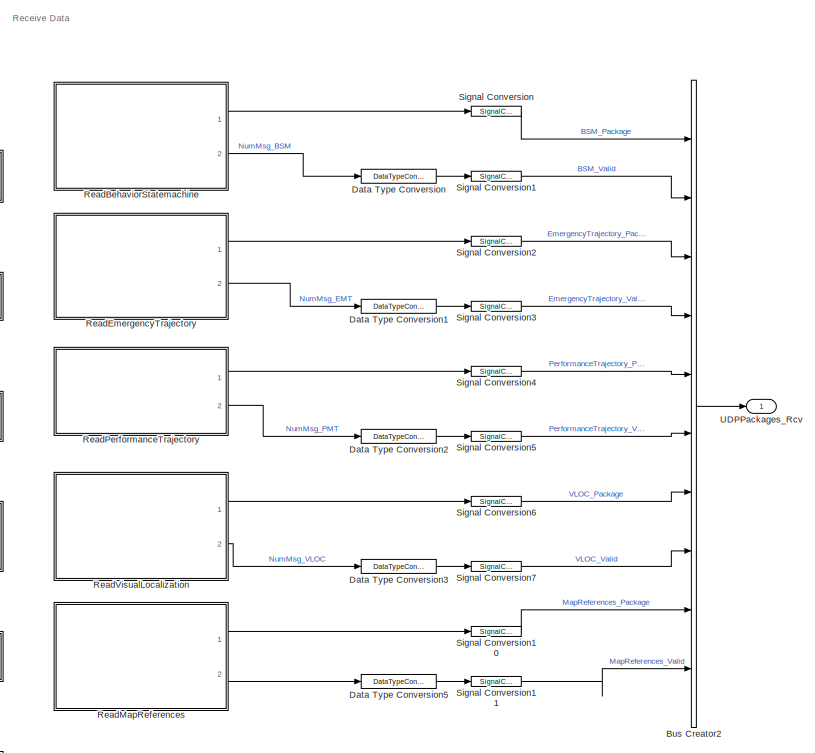
[diagram: root canvas - part 1/2, top right region]
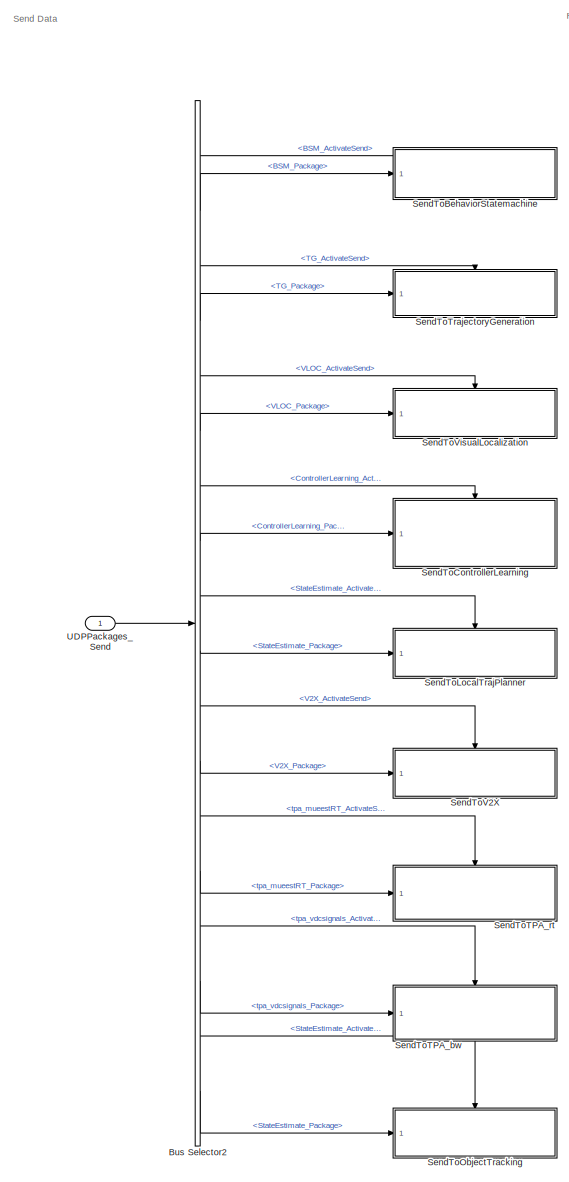
[diagram: root canvas - part 2/2, left side, full height]
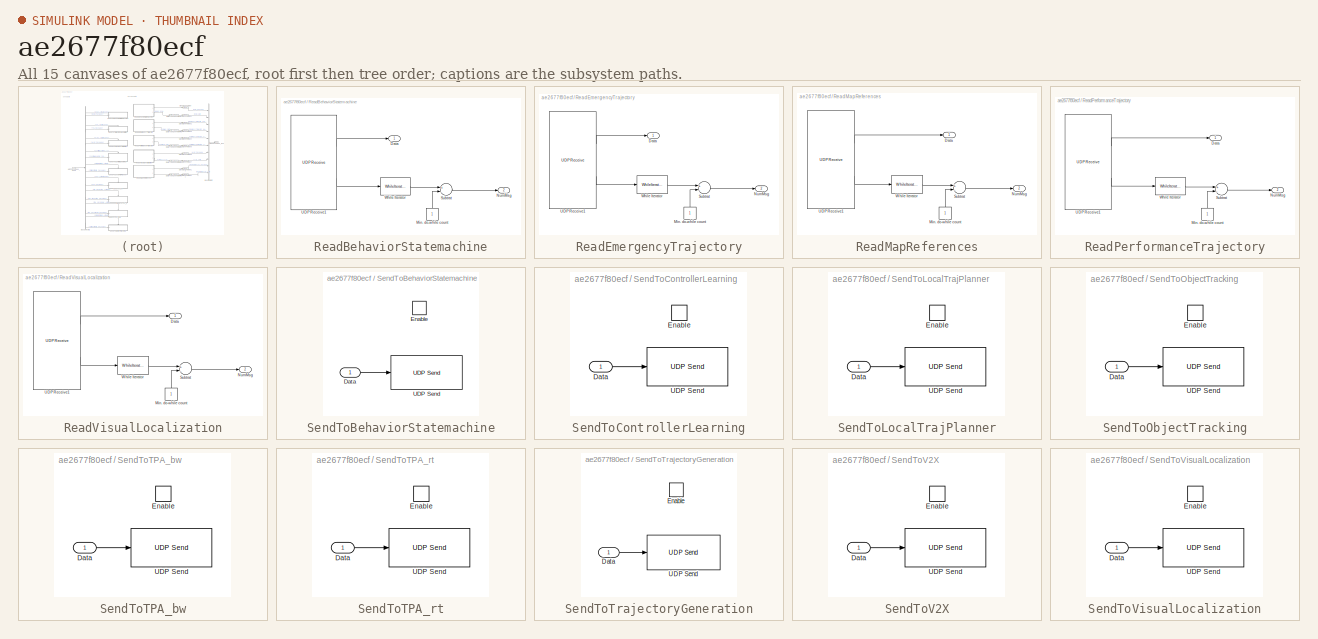
[diagram: thumbnail index - all 15 canvases of the model, root first then tree order]
MODEL slx_ae2677f80ecf
KIND model
BLOCK [BusCreator] Bus Creator2
  DisplayOption = bar
  InheritFromInputs = on
  Inputs = 10
  Ports = [10, 1]
BLOCK [BusSelector] Bus Selector2
  OutputAsBus = off
  OutputSignals = BSM_ActivateSend,BSM_Package,TG_ActivateSend,TG_Package,VLOC_ActivateSend,VLOC_Package,ControllerLearning_ActivateSend,ControllerLearning_Package,StateEstimate_ActivateSend,StateEstimate_Package,V2X_ActivateSend,V2X_Package,tpa_mueestRT_ActivateSend,tpa_mueestRT_Package,tpa_vdcsignals_ActivateSend,tpa_vdcsignals_Package,StateEstimate_ActivateSend,StateEstimate_Package
  Ports = [1, 18]
BLOCK [DataTypeConversion] Data Type Conversion
  OutDataTypeStr = boolean
  RndMeth = Floor
  SaturateOnIntegerOverflow = off
BLOCK [DataTypeConversion] Data Type Conversion1
  OutDataTypeStr = boolean
  RndMeth = Floor
  SaturateOnIntegerOverflow = off
BLOCK [DataTypeConversion] Data Type Conversion2
  OutDataTypeStr = boolean
  RndMeth = Floor
  SaturateOnIntegerOverflow = off
BLOCK [DataTypeConversion] Data Type Conversion3
  OutDataTypeStr = boolean
  RndMeth = Floor
  SaturateOnIntegerOverflow = off
BLOCK [DataTypeConversion] Data Type Conversion5
  OutDataTypeStr = boolean
  RndMeth = Floor
  SaturateOnIntegerOverflow = off
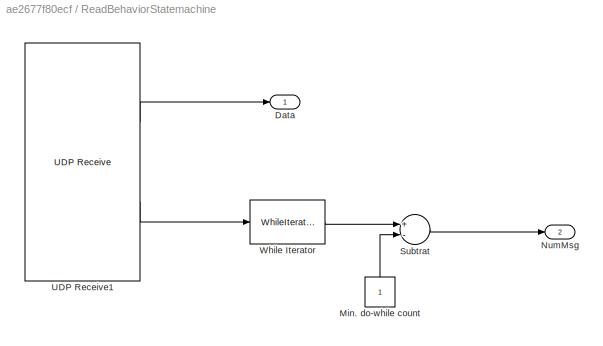
BLOCK [SubSystem] ReadBehaviorStatemachine
  Ports = [0, 2]
  Priority = 1000
  RequestExecContextInheritance = off
BLOCK [Outport] ReadBehaviorStatemachine/Data
  IconDisplay = Port number
BLOCK [Constant] ReadBehaviorStatemachine/Min. do-while count
  OutDataTypeStr = int8
BLOCK [Outport] ReadBehaviorStatemachine/NumMsg
  IconDisplay = Port number
  Port = 2
BLOCK [Sum] ReadBehaviorStatemachine/Subtrat
  InputSameDT = off
  Inputs = +-
  OutDataTypeStr = Inherit: Inherit via internal rule
  Ports = [2, 1]
  SaturateOnIntegerOverflow = off
BLOCK [Reference] ReadBehaviorStatemachine/UDP Receive1  REF=dspnetwork/UDP Receive
  Ports = [0, 2]
  SourceBlock = dspnetwork/UDP Receive
  SourceProductBaseCode = DS
  SourceProductName = DSP System Toolbox
  SourceType = UDP Receive
BLOCK [WhileIterator] ReadBehaviorStatemachine/While Iterator
  MaxIters = -1
  OutputDataType = int16
  Ports = [1, 1]
  ShowIterationPort = on
  WhileBlockType = do-while
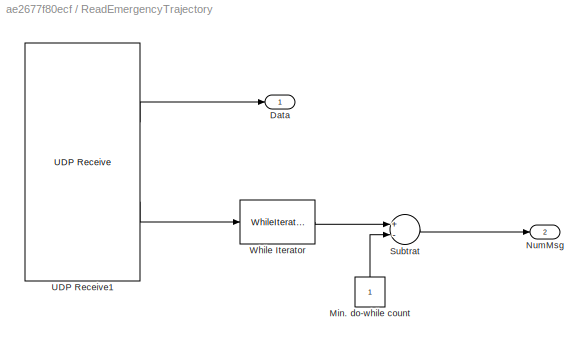
BLOCK [SubSystem] ReadEmergencyTrajectory
  Ports = [0, 2]
  Priority = 1000
  RequestExecContextInheritance = off
BLOCK [Outport] ReadEmergencyTrajectory/Data
  IconDisplay = Port number
BLOCK [Constant] ReadEmergencyTrajectory/Min. do-while count
  OutDataTypeStr = int8
BLOCK [Outport] ReadEmergencyTrajectory/NumMsg
  IconDisplay = Port number
  Port = 2
BLOCK [Sum] ReadEmergencyTrajectory/Subtrat
  InputSameDT = off
  Inputs = +-
  OutDataTypeStr = Inherit: Inherit via internal rule
  Ports = [2, 1]
  SaturateOnIntegerOverflow = off
BLOCK [Reference] ReadEmergencyTrajectory/UDP Receive1  REF=dspnetwork/UDP Receive
  Ports = [0, 2]
  SourceBlock = dspnetwork/UDP Receive
  SourceProductBaseCode = DS
  SourceProductName = DSP System Toolbox
  SourceType = UDP Receive
BLOCK [WhileIterator] ReadEmergencyTrajectory/While Iterator
  MaxIters = -1
  OutputDataType = int16
  Ports = [1, 1]
  ShowIterationPort = on
  WhileBlockType = do-while
BLOCK [SubSystem] ReadMapReferences
  Ports = [0, 2]
  Priority = 1000
  RequestExecContextInheritance = off
BLOCK [Outport] ReadMapReferences/Data
  IconDisplay = Port number
BLOCK [Constant] ReadMapReferences/Min. do-while count
  OutDataTypeStr = int8
BLOCK [Outport] ReadMapReferences/NumMsg
  IconDisplay = Port number
  Port = 2
BLOCK [Sum] ReadMapReferences/Subtrat
  InputSameDT = off
  Inputs = +-
  OutDataTypeStr = Inherit: Inherit via internal rule
  Ports = [2, 1]
  SaturateOnIntegerOverflow = off
BLOCK [Reference] ReadMapReferences/UDP Receive1  REF=dspnetwork/UDP Receive
  Ports = [0, 2]
  SourceBlock = dspnetwork/UDP Receive
  SourceProductBaseCode = DS
  SourceProductName = DSP System Toolbox
  SourceType = UDP Receive
BLOCK [WhileIterator] ReadMapReferences/While Iterator
  MaxIters = -1
  OutputDataType = int16
  Ports = [1, 1]
  ShowIterationPort = on
  WhileBlockType = do-while
BLOCK [SubSystem] ReadPerformanceTrajectory
  Ports = [0, 2]
  Priority = 1000
  RequestExecContextInheritance = off
BLOCK [Outport] ReadPerformanceTrajectory/Data
  IconDisplay = Port number
BLOCK [Constant] ReadPerformanceTrajectory/Min. do-while count
  OutDataTypeStr = int8
BLOCK [Outport] ReadPerformanceTrajectory/NumMsg
  IconDisplay = Port number
  Port = 2
BLOCK [Sum] ReadPerformanceTrajectory/Subtrat
  InputSameDT = off
  Inputs = +-
  OutDataTypeStr = Inherit: Inherit via internal rule
  Ports = [2, 1]
  SaturateOnIntegerOverflow = off
BLOCK [Reference] ReadPerformanceTrajectory/UDP Receive1  REF=dspnetwork/UDP Receive
  Ports = [0, 2]
  SourceBlock = dspnetwork/UDP Receive
  SourceProductBaseCode = DS
  SourceProductName = DSP System Toolbox
  SourceType = UDP Receive
BLOCK [WhileIterator] ReadPerformanceTrajectory/While Iterator
  MaxIters = -1
  OutputDataType = int16
  Ports = [1, 1]
  ShowIterationPort = on
  WhileBlockType = do-while
BLOCK [SubSystem] ReadVisualLocalization
  Ports = [0, 2]
  Priority = 1000
  RequestExecContextInheritance = off
BLOCK [Outport] ReadVisualLocalization/Data
  IconDisplay = Port number
BLOCK [Constant] ReadVisualLocalization/Min. do-while count
  OutDataTypeStr = int8
BLOCK [Outport] ReadVisualLocalization/NumMsg
  IconDisplay = Port number
  Port = 2
BLOCK [Sum] ReadVisualLocalization/Subtrat
  InputSameDT = off
  Inputs = +-
  OutDataTypeStr = Inherit: Inherit via internal rule
  Ports = [2, 1]
  SaturateOnIntegerOverflow = off
BLOCK [Reference] ReadVisualLocalization/UDP Receive1  REF=dspnetwork/UDP Receive
  Ports = [0, 2]
  SourceBlock = dspnetwork/UDP Receive
  SourceProductBaseCode = DS
  SourceProductName = DSP System Toolbox
  SourceType = UDP Receive
BLOCK [WhileIterator] ReadVisualLocalization/While Iterator
  MaxIters = -1
  OutputDataType = int16
  Ports = [1, 1]
  ShowIterationPort = on
  WhileBlockType = do-while
BLOCK [SubSystem] SendToBehaviorStatemachine
  Ports = [1, 0, 1]
  RequestExecContextInheritance = off
BLOCK [Inport] SendToBehaviorStatemachine/Data
  IconDisplay = Port number
BLOCK [EnablePort] SendToBehaviorStatemachine/Enable
  Ports = []
BLOCK [Reference] SendToBehaviorStatemachine/UDP Send  REF=dspnetwork/UDP Send
  Ports = [1]
  SourceBlock = dspnetwork/UDP Send
  SourceProductBaseCode = DS
  SourceProductName = DSP System Toolbox
  SourceType = UDP Send
BLOCK [SubSystem] SendToControllerLearning
  Ports = [1, 0, 1]
  RequestExecContextInheritance = off
BLOCK [Inport] SendToControllerLearning/Data
  IconDisplay = Port number
BLOCK [EnablePort] SendToControllerLearning/Enable
  Ports = []
BLOCK [Reference] SendToControllerLearning/UDP Send  REF=dspnetwork/UDP Send
  Ports = [1]
  SourceBlock = dspnetwork/UDP Send
  SourceProductBaseCode = DS
  SourceProductName = DSP System Toolbox
  SourceType = UDP Send
BLOCK [SubSystem] SendToLocalTrajPlanner
  Ports = [1, 0, 1]
  RequestExecContextInheritance = off
BLOCK [Inport] SendToLocalTrajPlanner/Data
  IconDisplay = Port number
BLOCK [EnablePort] SendToLocalTrajPlanner/Enable
  Ports = []
BLOCK [Reference] SendToLocalTrajPlanner/UDP Send  REF=dspnetwork/UDP Send
  Ports = [1]
  SourceBlock = dspnetwork/UDP Send
  SourceProductBaseCode = DS
  SourceProductName = DSP System Toolbox
  SourceType = UDP Send
BLOCK [SubSystem] SendToObjectTracking
  Ports = [1, 0, 1]
  RequestExecContextInheritance = off
BLOCK [Inport] SendToObjectTracking/Data
  IconDisplay = Port number
BLOCK [EnablePort] SendToObjectTracking/Enable
  Ports = []
BLOCK [Reference] SendToObjectTracking/UDP Send  REF=dspnetwork/UDP Send
  Ports = [1]
  SourceBlock = dspnetwork/UDP Send
  SourceProductBaseCode = DS
  SourceProductName = DSP System Toolbox
  SourceType = UDP Send
BLOCK [SubSystem] SendToTPA_bw
  Ports = [1, 0, 1]
  RequestExecContextInheritance = off
BLOCK [Inport] SendToTPA_bw/Data
  IconDisplay = Port number
BLOCK [EnablePort] SendToTPA_bw/Enable
  Ports = []
BLOCK [Reference] SendToTPA_bw/UDP Send  REF=dspnetwork/UDP Send
  Ports = [1]
  SourceBlock = dspnetwork/UDP Send
  SourceProductBaseCode = DS
  SourceProductName = DSP System Toolbox
  SourceType = UDP Send
BLOCK [SubSystem] SendToTPA_rt
  Ports = [1, 0, 1]
  RequestExecContextInheritance = off
BLOCK [Inport] SendToTPA_rt/Data
  IconDisplay = Port number
BLOCK [EnablePort] SendToTPA_rt/Enable
  Ports = []
BLOCK [Reference] SendToTPA_rt/UDP Send  REF=dspnetwork/UDP Send
  Ports = [1]
  SourceBlock = dspnetwork/UDP Send
  SourceProductBaseCode = DS
  SourceProductName = DSP System Toolbox
  SourceType = UDP Send
BLOCK [SubSystem] SendToTrajectoryGeneration
  Ports = [1, 0, 1]
  RequestExecContextInheritance = off
BLOCK [Inport] SendToTrajectoryGeneration/Data
  IconDisplay = Port number
BLOCK [EnablePort] SendToTrajectoryGeneration/Enable
  Ports = []
BLOCK [Reference] SendToTrajectoryGeneration/UDP Send  REF=dspnetwork/UDP Send
  Ports = [1]
  SourceBlock = dspnetwork/UDP Send
  SourceProductBaseCode = DS
  SourceProductName = DSP System Toolbox
  SourceType = UDP Send
BLOCK [SubSystem] SendToV2X
  Ports = [1, 0, 1]
  RequestExecContextInheritance = off
BLOCK [Inport] SendToV2X/Data
  IconDisplay = Port number
BLOCK [EnablePort] SendToV2X/Enable
  Ports = []
BLOCK [Reference] SendToV2X/UDP Send  REF=dspnetwork/UDP Send
  Ports = [1]
  SourceBlock = dspnetwork/UDP Send
  SourceProductBaseCode = DS
  SourceProductName = DSP System Toolbox
  SourceType = UDP Send
BLOCK [SubSystem] SendToVisualLocalization
  Ports = [1, 0, 1]
  RequestExecContextInheritance = off
BLOCK [Inport] SendToVisualLocalization/Data
  IconDisplay = Port number
BLOCK [EnablePort] SendToVisualLocalization/Enable
  Ports = []
BLOCK [Reference] SendToVisualLocalization/UDP Send  REF=dspnetwork/UDP Send
  Ports = [1]
  SourceBlock = dspnetwork/UDP Send
  SourceProductBaseCode = DS
  SourceProductName = DSP System Toolbox
  SourceType = UDP Send
BLOCK [SignalConversion] Signal Conversion
  OverrideOpt = off
BLOCK [SignalConversion] Signal Conversion1
  OverrideOpt = off
BLOCK [SignalConversion] Signal Conversion10
  OverrideOpt = off
BLOCK [SignalConversion] Signal Conversion11
  OverrideOpt = off
BLOCK [SignalConversion] Signal Conversion2
  OverrideOpt = off
BLOCK [SignalConversion] Signal Conversion3
  OverrideOpt = off
BLOCK [SignalConversion] Signal Conversion4
  OverrideOpt = off
BLOCK [SignalConversion] Signal Conversion5
  OverrideOpt = off
BLOCK [SignalConversion] Signal Conversion6
  OverrideOpt = off
BLOCK [SignalConversion] Signal Conversion7
  OverrideOpt = off
BLOCK [Outport] UDPPackages_Rcv
  IconDisplay = Port number
  OutDataTypeStr = Bus: UDPPackages_Rcv
BLOCK [Inport] UDPPackages_Send
  IconDisplay = Port number
  OutDataTypeStr = Bus: UDPPackages_Send
ANNOTATION (root): Receive Data
ANNOTATION (root): Send Data
LINE Bus Creator2:1 -> UDPPackages_Rcv:1
LINE Bus Selector2:1 -> SendToBehaviorStatemachine:enable
LINE Bus Selector2:10 -> SendToLocalTrajPlanner:1
LINE Bus Selector2:11 -> SendToV2X:enable
LINE Bus Selector2:12 -> SendToV2X:1
LINE Bus Selector2:13 -> SendToTPA_rt:enable
LINE Bus Selector2:14 -> SendToTPA_rt:1
LINE Bus Selector2:15 -> SendToTPA_bw:enable
LINE Bus Selector2:16 -> SendToTPA_bw:1
LINE Bus Selector2:17 -> SendToObjectTracking:enable
LINE Bus Selector2:18 -> SendToObjectTracking:1
LINE Bus Selector2:2 -> SendToBehaviorStatemachine:1
LINE Bus Selector2:3 -> SendToTrajectoryGeneration:enable
LINE Bus Selector2:4 -> SendToTrajectoryGeneration:1
LINE Bus Selector2:5 -> SendToVisualLocalization:enable
LINE Bus Selector2:6 -> SendToVisualLocalization:1
LINE Bus Selector2:7 -> SendToControllerLearning:enable
LINE Bus Selector2:8 -> SendToControllerLearning:1
LINE Bus Selector2:9 -> SendToLocalTrajPlanner:enable
LINE Data Type Conversion1:1 -> Signal Conversion3:1
LINE Data Type Conversion2:1 -> Signal Conversion5:1
LINE Data Type Conversion3:1 -> Signal Conversion7:1
LINE Data Type Conversion5:1 -> Signal Conversion11:1
LINE Data Type Conversion:1 -> Signal Conversion1:1
LINE ReadBehaviorStatemachine/Min. do-while count:1 -> ReadBehaviorStatemachine/Subtrat:2
LINE ReadBehaviorStatemachine/Subtrat:1 -> ReadBehaviorStatemachine/NumMsg:1
LINE ReadBehaviorStatemachine/UDP Receive1:1 -> ReadBehaviorStatemachine/Data:1
LINE ReadBehaviorStatemachine/UDP Receive1:2 -> ReadBehaviorStatemachine/While Iterator:1
LINE ReadBehaviorStatemachine/While Iterator:1 -> ReadBehaviorStatemachine/Subtrat:1
LINE ReadBehaviorStatemachine:1 -> Signal Conversion:1
LINE ReadBehaviorStatemachine:2 -> Data Type Conversion:1
LINE ReadEmergencyTrajectory/Min. do-while count:1 -> ReadEmergencyTrajectory/Subtrat:2
LINE ReadEmergencyTrajectory/Subtrat:1 -> ReadEmergencyTrajectory/NumMsg:1
LINE ReadEmergencyTrajectory/UDP Receive1:1 -> ReadEmergencyTrajectory/Data:1
LINE ReadEmergencyTrajectory/UDP Receive1:2 -> ReadEmergencyTrajectory/While Iterator:1
LINE ReadEmergencyTrajectory/While Iterator:1 -> ReadEmergencyTrajectory/Subtrat:1
LINE ReadEmergencyTrajectory:1 -> Signal Conversion2:1
LINE ReadEmergencyTrajectory:2 -> Data Type Conversion1:1
LINE ReadMapReferences/Min. do-while count:1 -> ReadMapReferences/Subtrat:2
LINE ReadMapReferences/Subtrat:1 -> ReadMapReferences/NumMsg:1
LINE ReadMapReferences/UDP Receive1:1 -> ReadMapReferences/Data:1
LINE ReadMapReferences/UDP Receive1:2 -> ReadMapReferences/While Iterator:1
LINE ReadMapReferences/While Iterator:1 -> ReadMapReferences/Subtrat:1
LINE ReadMapReferences:1 -> Signal Conversion10:1
LINE ReadMapReferences:2 -> Data Type Conversion5:1
LINE ReadPerformanceTrajectory/Min. do-while count:1 -> ReadPerformanceTrajectory/Subtrat:2
LINE ReadPerformanceTrajectory/Subtrat:1 -> ReadPerformanceTrajectory/NumMsg:1
LINE ReadPerformanceTrajectory/UDP Receive1:1 -> ReadPerformanceTrajectory/Data:1
LINE ReadPerformanceTrajectory/UDP Receive1:2 -> ReadPerformanceTrajectory/While Iterator:1
LINE ReadPerformanceTrajectory/While Iterator:1 -> ReadPerformanceTrajectory/Subtrat:1
LINE ReadPerformanceTrajectory:1 -> Signal Conversion4:1
LINE ReadPerformanceTrajectory:2 -> Data Type Conversion2:1
LINE ReadVisualLocalization/Min. do-while count:1 -> ReadVisualLocalization/Subtrat:2
LINE ReadVisualLocalization/Subtrat:1 -> ReadVisualLocalization/NumMsg:1
LINE ReadVisualLocalization/UDP Receive1:1 -> ReadVisualLocalization/Data:1
LINE ReadVisualLocalization/UDP Receive1:2 -> ReadVisualLocalization/While Iterator:1
LINE ReadVisualLocalization/While Iterator:1 -> ReadVisualLocalization/Subtrat:1
LINE ReadVisualLocalization:1 -> Signal Conversion6:1
LINE ReadVisualLocalization:2 -> Data Type Conversion3:1
LINE SendToBehaviorStatemachine/Data:1 -> SendToBehaviorStatemachine/UDP Send:1
LINE SendToControllerLearning/Data:1 -> SendToControllerLearning/UDP Send:1
LINE SendToLocalTrajPlanner/Data:1 -> SendToLocalTrajPlanner/UDP Send:1
LINE SendToObjectTracking/Data:1 -> SendToObjectTracking/UDP Send:1
LINE SendToTPA_bw/Data:1 -> SendToTPA_bw/UDP Send:1
LINE SendToTPA_rt/Data:1 -> SendToTPA_rt/UDP Send:1
LINE SendToTrajectoryGeneration/Data:1 -> SendToTrajectoryGeneration/UDP Send:1
LINE SendToV2X/Data:1 -> SendToV2X/UDP Send:1
LINE SendToVisualLocalization/Data:1 -> SendToVisualLocalization/UDP Send:1
LINE Signal Conversion10:1 -> Bus Creator2:9
LINE Signal Conversion11:1 -> Bus Creator2:10
LINE Signal Conversion1:1 -> Bus Creator2:2
LINE Signal Conversion2:1 -> Bus Creator2:3
LINE Signal Conversion3:1 -> Bus Creator2:4
LINE Signal Conversion4:1 -> Bus Creator2:5
LINE Signal Conversion5:1 -> Bus Creator2:6
LINE Signal Conversion6:1 -> Bus Creator2:7
LINE Signal Conversion7:1 -> Bus Creator2:8
LINE Signal Conversion:1 -> Bus Creator2:1
LINE UDPPackages_Send:1 -> Bus Selector2:1
